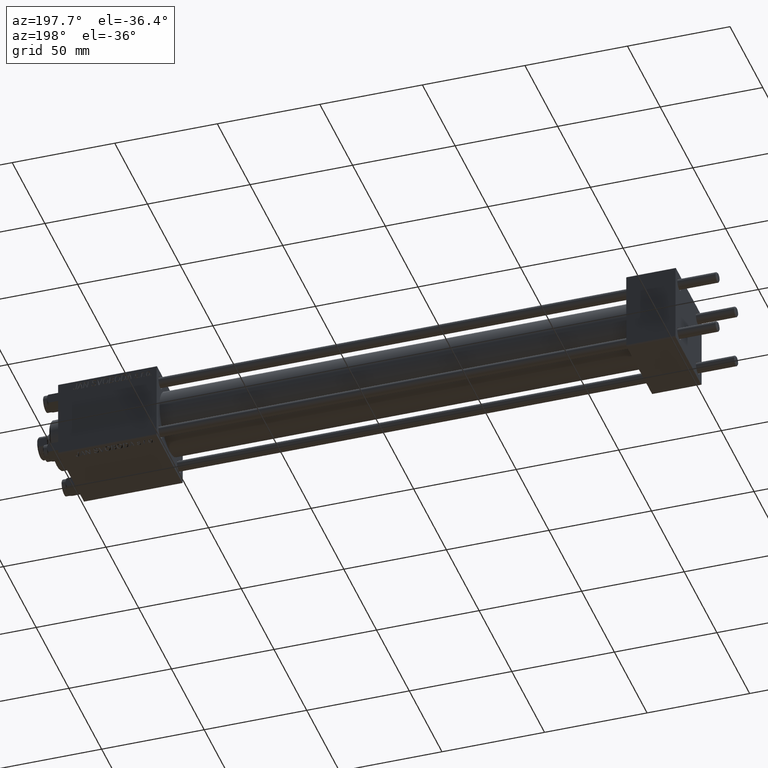
[diagram: clean part render]
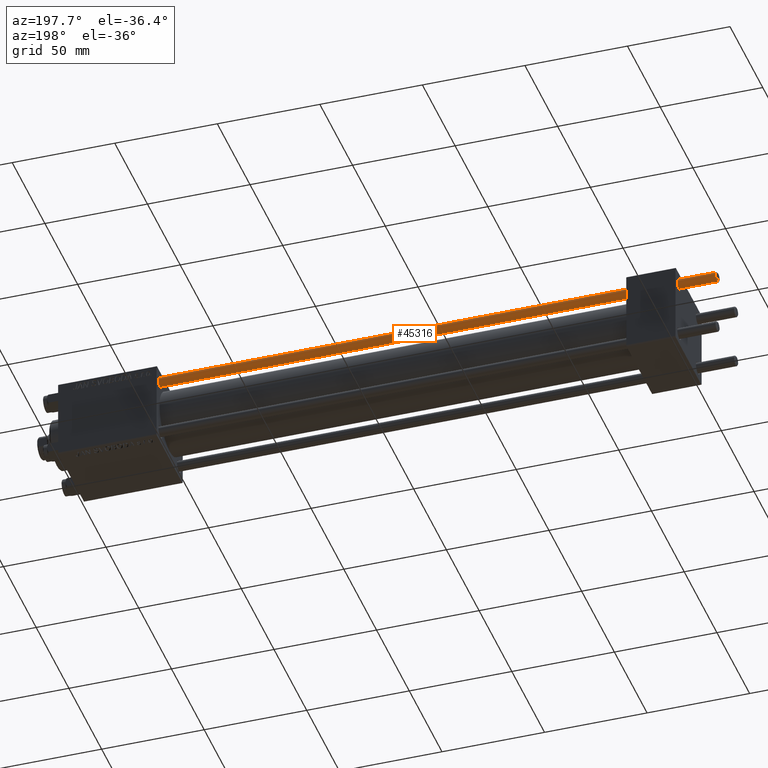
[diagram: same view with one face highlighted and labeled with its STEP entity id]
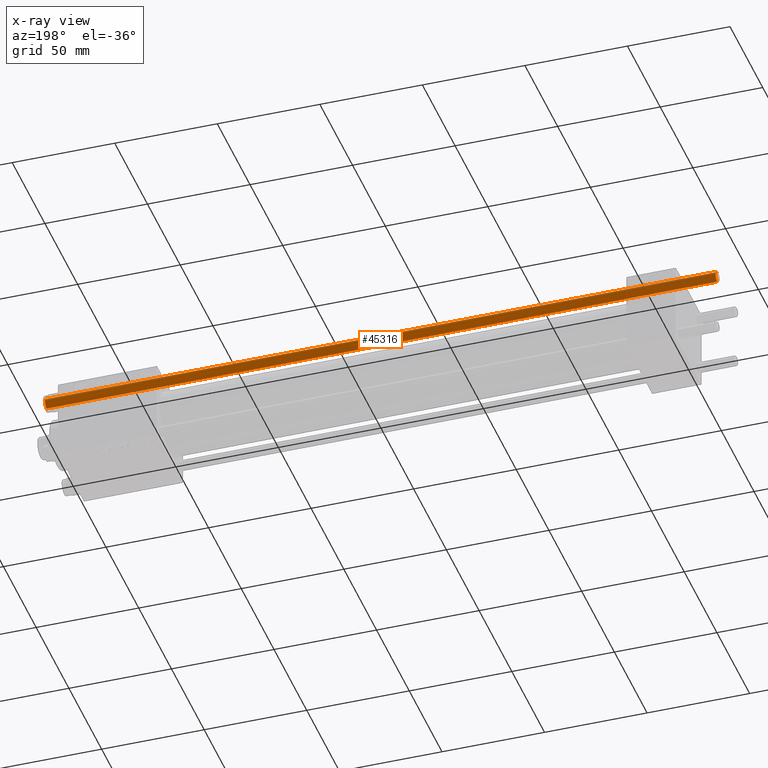
[diagram: x-ray of the same camera — body ghosted, the highlighted face saturated]
A machine part, auxiliary view. The second image highlights one B-rep face of the part: STEP entity #45316.
The next image is the same camera in x-ray: the body ghosted, the highlighted face saturated — about 0% of this face is hidden behind the body in this view.
In plain terms, the highlighted cylindrical surface (edge-blend (fillet) strip) has radius 2.5 mm, axis along (-1, -0, -0).
Its self-contained STEP definition (entity closure, byte-faithful):
#3028 = CYLINDRICAL_SURFACE ( 'NONE', #44685, 2.500000000000000000 ) ;
#4855 = EDGE_CURVE ( 'NONE', #24254, #45574, #33905, .T. ) ;
#5349 = ORIENTED_EDGE ( 'NONE', *, *, #20677, .T. ) ;
#6976 = DIRECTION ( 'NONE',  ( 1.000000000000000000, 0.000000000000000000, 0.000000000000000000 ) ) ;
#7365 = AXIS2_PLACEMENT_3D ( 'NONE', #17534, #9973, #6976 ) ;
#9173 = EDGE_CURVE ( 'NONE', #45574, #43679, #38604, .T. ) ;
#9973 = DIRECTION ( 'NONE',  ( 0.000000000000000000, 0.000000000000000000, -1.000000000000000000 ) ) ;
#11841 = ORIENTED_EDGE ( 'NONE', *, *, #4855, .T. ) ;
#13826 = ORIENTED_EDGE ( 'NONE', *, *, #20377, .F. ) ;
#14591 = DIRECTION ( 'NONE',  ( -0.000000000000000000, -0.000000000000000000, -1.000000000000000000 ) ) ;
#17534 = CARTESIAN_POINT ( 'NONE',  ( 0.000000000000000000, 0.000000000000000000, 327.4999999999999432 ) ) ;
#20377 = EDGE_CURVE ( 'NONE', #24254, #35179, #21559, .T. ) ;
#20677 = EDGE_CURVE ( 'NONE', #43679, #35179, #31619, .T. ) ;
#21559 = LINE ( 'NONE', #45239, #21998 ) ;
#21733 = CARTESIAN_POINT ( 'NONE',  ( 2.500000000000000000, 3.061616997868383141E-16, 327.4999999999999432 ) ) ;
#21799 = CARTESIAN_POINT ( 'NONE',  ( -2.500000000000000000, 0.000000000000000000, 327.4999999999999432 ) ) ;
#21998 = VECTOR ( 'NONE', #22054, 1000.000000000000000 ) ;
#22054 = DIRECTION ( 'NONE',  ( -0.000000000000000000, -0.000000000000000000, -1.000000000000000000 ) ) ;
#22949 = CARTESIAN_POINT ( 'NONE',  ( -2.500000000000000000, 0.000000000000000000, 0.5000000000000004441 ) ) ;
#23568 = AXIS2_PLACEMENT_3D ( 'NONE', #32826, #43185, #35608 ) ;
#23971 = DIRECTION ( 'NONE',  ( -0.000000000000000000, -0.000000000000000000, -1.000000000000000000 ) ) ;
#24254 = VERTEX_POINT ( 'NONE', #21799 ) ;
#29943 = DIRECTION ( 'NONE',  ( -1.000000000000000000, 0.000000000000000000, 0.000000000000000000 ) ) ;
#30592 = VECTOR ( 'NONE', #23971, 1000.000000000000000 ) ;
#31027 = CARTESIAN_POINT ( 'NONE',  ( 2.500000000000000000, 3.061616997868383141E-16, 328.0000000000000000 ) ) ;
#31619 = CIRCLE ( 'NONE', #23568, 2.500000000000000000 ) ;
#32826 = CARTESIAN_POINT ( 'NONE',  ( 0.000000000000000000, 0.000000000000000000, 0.5000000000000004441 ) ) ;
#33905 = CIRCLE ( 'NONE', #7365, 2.500000000000000000 ) ;
#35179 = VERTEX_POINT ( 'NONE', #22949 ) ;
#35608 = DIRECTION ( 'NONE',  ( 1.000000000000000000, 0.000000000000000000, 0.000000000000000000 ) ) ;
#37252 = FACE_OUTER_BOUND ( 'NONE', #45039, .T. ) ;
#38005 = CARTESIAN_POINT ( 'NONE',  ( 0.000000000000000000, 0.000000000000000000, 328.0000000000000000 ) ) ;
#38604 = LINE ( 'NONE', #31027, #30592 ) ;
#39659 = CARTESIAN_POINT ( 'NONE',  ( 2.500000000000000000, 3.061616997868383141E-16, 0.5000000000000004441 ) ) ;
#43185 = DIRECTION ( 'NONE',  ( -0.000000000000000000, -0.000000000000000000, 1.000000000000000000 ) ) ;
#43189 = ORIENTED_EDGE ( 'NONE', *, *, #9173, .T. ) ;
#43679 = VERTEX_POINT ( 'NONE', #39659 ) ;
#44685 = AXIS2_PLACEMENT_3D ( 'NONE', #38005, #14591, #29943 ) ;
#45039 = EDGE_LOOP ( 'NONE', ( #11841, #43189, #5349, #13826 ) ) ;
#45239 = CARTESIAN_POINT ( 'NONE',  ( -2.500000000000000000, 0.000000000000000000, 328.0000000000000000 ) ) ;
#45316 = ADVANCED_FACE ( 'NONE', ( #37252 ), #3028, .T. ) ;
#45574 = VERTEX_POINT ( 'NONE', #21733 ) ;